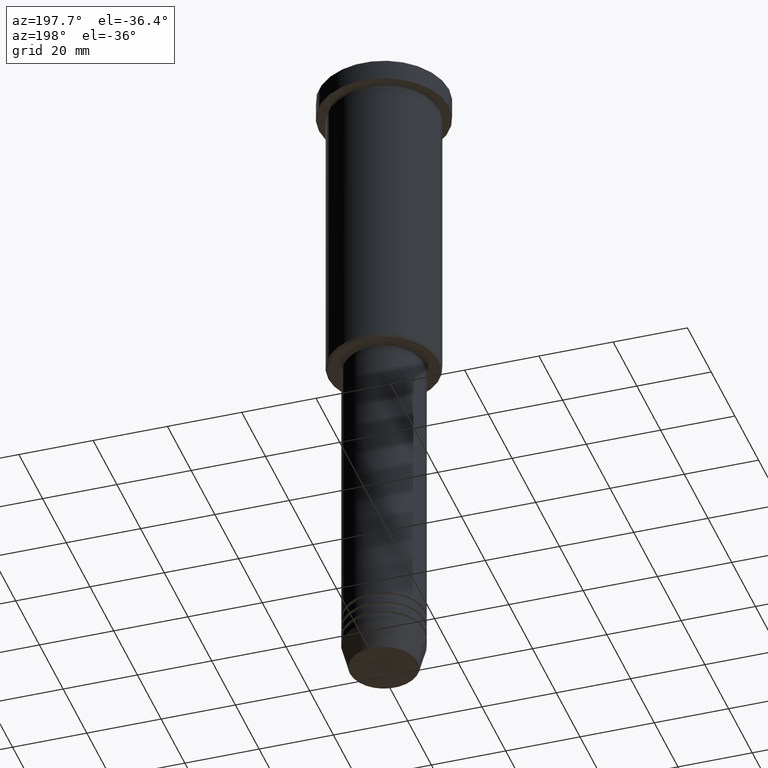
[diagram: clean part render]
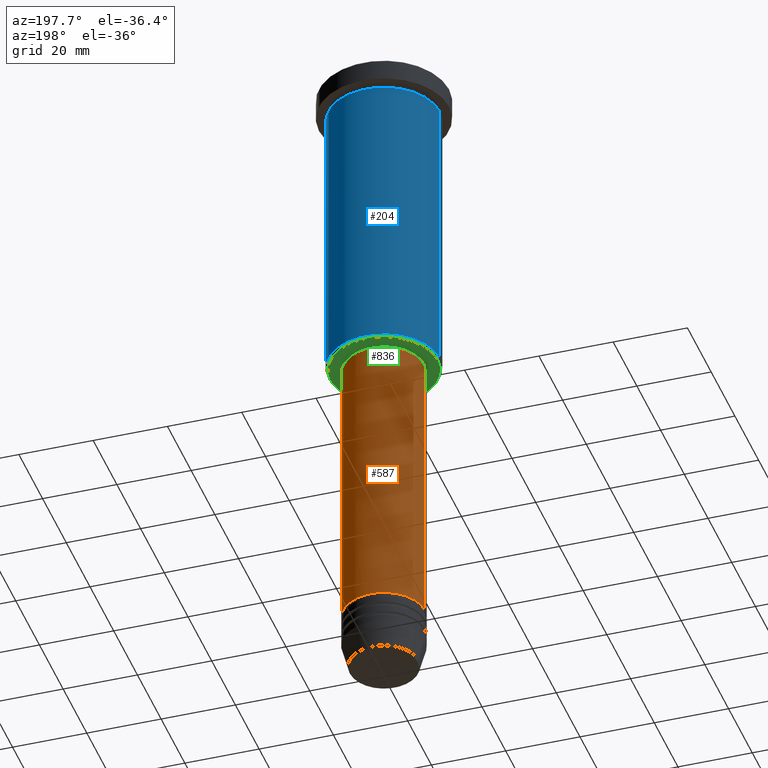
[diagram: same view with three faces highlighted in distinct colors, each labeled with its STEP entity id]
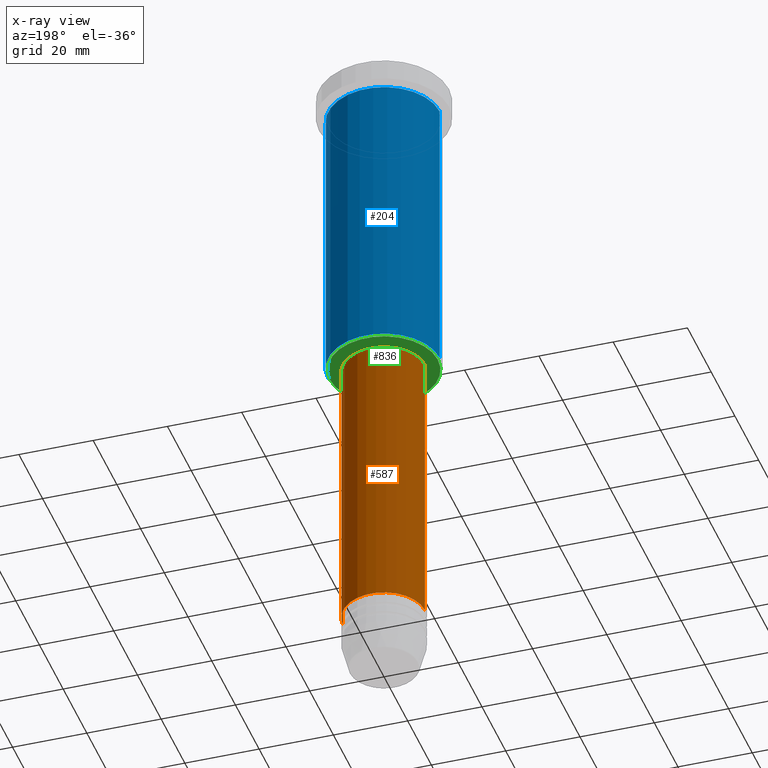
[diagram: x-ray of the same camera — body ghosted, the three highlighted faces saturated]
A machine part, auxiliary view with three faces highlighted in distinct colors.
The next image is the same camera in x-ray (body ghosted, the three faces saturated) — at least one of them is partly hidden behind the body in this view.
Their STEP definitions:

[orange] entity #587 — the highlighted cylindrical surface (partial cylindrical patch) has radius 11 mm, axis along (-0, -0, 1).
#58 = DIRECTION ( 'NONE',  ( 1.000000000000000000, 0.000000000000000000, 0.000000000000000000 ) ) ;
#66 = CARTESIAN_POINT ( 'NONE',  ( -11.00000000000000000, 1.347111479062088405E-15, -164.9999999999999716 ) ) ;
#88 = LINE ( 'NONE', #543, #180 ) ;
#114 = CARTESIAN_POINT ( 'NONE',  ( 11.00000000000000000, 0.000000000000000000, -164.9999999999999716 ) ) ;
#118 = VERTEX_POINT ( 'NONE', #114 ) ;
#162 = AXIS2_PLACEMENT_3D ( 'NONE', #1050, #322, #58 ) ;
#180 = VECTOR ( 'NONE', #825, 1000.000000000000000 ) ;
#207 = VERTEX_POINT ( 'NONE', #488 ) ;
#239 = ORIENTED_EDGE ( 'NONE', *, *, #533, .F. ) ;
#254 = DIRECTION ( 'NONE',  ( 1.000000000000000000, 0.000000000000000000, 0.000000000000000000 ) ) ;
#257 = ORIENTED_EDGE ( 'NONE', *, *, #942, .F. ) ;
#322 = DIRECTION ( 'NONE',  ( -0.000000000000000000, -0.000000000000000000, 1.000000000000000000 ) ) ;
#365 = ORIENTED_EDGE ( 'NONE', *, *, #741, .T. ) ;
#488 = CARTESIAN_POINT ( 'NONE',  ( 11.00000000000000000, 0.000000000000000000, -87.00000000000002842 ) ) ;
#493 = LINE ( 'NONE', #1136, #776 ) ;
#504 = EDGE_LOOP ( 'NONE', ( #365, #532, #257, #239 ) ) ;
#532 = ORIENTED_EDGE ( 'NONE', *, *, #1080, .T. ) ;
#533 = EDGE_CURVE ( 'NONE', #118, #207, #88, .T. ) ;
#543 = CARTESIAN_POINT ( 'NONE',  ( 11.00000000000000000, 0.000000000000000000, 0.000000000000000000 ) ) ;
#560 = FACE_OUTER_BOUND ( 'NONE', #504, .T. ) ;
#566 = CYLINDRICAL_SURFACE ( 'NONE', #575, 11.00000000000000000 ) ;
#575 = AXIS2_PLACEMENT_3D ( 'NONE', #937, #945, #757 ) ;
#587 = ADVANCED_FACE ( 'NONE', ( #560 ), #566, .T. ) ;
#665 = CARTESIAN_POINT ( 'NONE',  ( -11.00000000000000000, 1.347111479062088405E-15, -87.00000000000002842 ) ) ;
#679 = CIRCLE ( 'NONE', #162, 11.00000000000000000 ) ;
#724 = DIRECTION ( 'NONE',  ( -0.000000000000000000, -0.000000000000000000, 1.000000000000000000 ) ) ;
#737 = VERTEX_POINT ( 'NONE', #66 ) ;
#741 = EDGE_CURVE ( 'NONE', #118, #737, #679, .T. ) ;
#757 = DIRECTION ( 'NONE',  ( 1.000000000000000000, 0.000000000000000000, 0.000000000000000000 ) ) ;
#776 = VECTOR ( 'NONE', #860, 1000.000000000000000 ) ;
#825 = DIRECTION ( 'NONE',  ( -0.000000000000000000, -0.000000000000000000, 1.000000000000000000 ) ) ;
#860 = DIRECTION ( 'NONE',  ( -0.000000000000000000, -0.000000000000000000, 1.000000000000000000 ) ) ;
#933 = CARTESIAN_POINT ( 'NONE',  ( 0.000000000000000000, 0.000000000000000000, -87.00000000000002842 ) ) ;
#937 = CARTESIAN_POINT ( 'NONE',  ( 0.000000000000000000, 0.000000000000000000, 0.000000000000000000 ) ) ;
#942 = EDGE_CURVE ( 'NONE', #207, #1062, #1040, .T. ) ;
#945 = DIRECTION ( 'NONE',  ( -0.000000000000000000, -0.000000000000000000, 1.000000000000000000 ) ) ;
#961 = AXIS2_PLACEMENT_3D ( 'NONE', #933, #724, #254 ) ;
#1040 = CIRCLE ( 'NONE', #961, 11.00000000000000000 ) ;
#1050 = CARTESIAN_POINT ( 'NONE',  ( 0.000000000000000000, 0.000000000000000000, -164.9999999999999716 ) ) ;
#1062 = VERTEX_POINT ( 'NONE', #665 ) ;
#1080 = EDGE_CURVE ( 'NONE', #737, #1062, #493, .T. ) ;
#1136 = CARTESIAN_POINT ( 'NONE',  ( -11.00000000000000000, 1.347111479062088405E-15, 0.000000000000000000 ) ) ;

[blue] entity #204 — the highlighted cylindrical surface (partial cylindrical patch) has radius 15 mm, axis along (-0, -0, 1).
#32 = DIRECTION ( 'NONE',  ( -0.000000000000000000, -0.000000000000000000, 1.000000000000000000 ) ) ;
#42 = VERTEX_POINT ( 'NONE', #926 ) ;
#78 = VERTEX_POINT ( 'NONE', #361 ) ;
#87 = EDGE_LOOP ( 'NONE', ( #946, #1126, #716, #803 ) ) ;
#133 = DIRECTION ( 'NONE',  ( -0.000000000000000000, -0.000000000000000000, 1.000000000000000000 ) ) ;
#169 = DIRECTION ( 'NONE',  ( -0.000000000000000000, -0.000000000000000000, 1.000000000000000000 ) ) ;
#204 = ADVANCED_FACE ( 'NONE', ( #482 ), #680, .T. ) ;
#319 = DIRECTION ( 'NONE',  ( -0.000000000000000000, -0.000000000000000000, 1.000000000000000000 ) ) ;
#361 = CARTESIAN_POINT ( 'NONE',  ( 15.00000000000000000, 0.000000000000000000, -85.49999999999998579 ) ) ;
#397 = EDGE_CURVE ( 'NONE', #78, #1013, #1142, .T. ) ;
#405 = CARTESIAN_POINT ( 'NONE',  ( 15.00000000000000000, 0.000000000000000000, -6.999999999999995559 ) ) ;
#447 = DIRECTION ( 'NONE',  ( -1.000000000000000000, 0.000000000000000000, 0.000000000000000000 ) ) ;
#478 = EDGE_CURVE ( 'NONE', #78, #42, #773, .T. ) ;
#482 = FACE_OUTER_BOUND ( 'NONE', #87, .T. ) ;
#534 = AXIS2_PLACEMENT_3D ( 'NONE', #537, #169, #447 ) ;
#537 = CARTESIAN_POINT ( 'NONE',  ( 0.000000000000000000, 0.000000000000000000, -85.49999999999998579 ) ) ;
#582 = DIRECTION ( 'NONE',  ( 1.000000000000000000, 0.000000000000000000, 0.000000000000000000 ) ) ;
#598 = VECTOR ( 'NONE', #614, 1000.000000000000000 ) ;
#614 = DIRECTION ( 'NONE',  ( -0.000000000000000000, -0.000000000000000000, 1.000000000000000000 ) ) ;
#652 = LINE ( 'NONE', #704, #869 ) ;
#654 = CARTESIAN_POINT ( 'NONE',  ( 0.000000000000000000, 0.000000000000000000, 0.000000000000000000 ) ) ;
#680 = CYLINDRICAL_SURFACE ( 'NONE', #1001, 15.00000000000000000 ) ;
#699 = CARTESIAN_POINT ( 'NONE',  ( 15.00000000000000000, 0.000000000000000000, 0.000000000000000000 ) ) ;
#704 = CARTESIAN_POINT ( 'NONE',  ( -15.00000000000000000, 1.836970198721029589E-15, 0.000000000000000000 ) ) ;
#711 = EDGE_CURVE ( 'NONE', #42, #899, #652, .T. ) ;
#716 = ORIENTED_EDGE ( 'NONE', *, *, #748, .F. ) ;
#748 = EDGE_CURVE ( 'NONE', #1013, #899, #1131, .T. ) ;
#773 = CIRCLE ( 'NONE', #534, 15.00000000000000000 ) ;
#780 = CARTESIAN_POINT ( 'NONE',  ( 0.000000000000000000, 0.000000000000000000, -6.999999999999995559 ) ) ;
#793 = AXIS2_PLACEMENT_3D ( 'NONE', #780, #319, #582 ) ;
#803 = ORIENTED_EDGE ( 'NONE', *, *, #397, .F. ) ;
#869 = VECTOR ( 'NONE', #133, 1000.000000000000000 ) ;
#899 = VERTEX_POINT ( 'NONE', #1103 ) ;
#926 = CARTESIAN_POINT ( 'NONE',  ( -15.00000000000000000, 1.836970198721029589E-15, -85.49999999999998579 ) ) ;
#946 = ORIENTED_EDGE ( 'NONE', *, *, #478, .T. ) ;
#1001 = AXIS2_PLACEMENT_3D ( 'NONE', #654, #32, #1019 ) ;
#1013 = VERTEX_POINT ( 'NONE', #405 ) ;
#1019 = DIRECTION ( 'NONE',  ( 1.000000000000000000, 0.000000000000000000, 0.000000000000000000 ) ) ;
#1103 = CARTESIAN_POINT ( 'NONE',  ( -15.00000000000000000, 1.836970198721029589E-15, -6.999999999999995559 ) ) ;
#1126 = ORIENTED_EDGE ( 'NONE', *, *, #711, .T. ) ;
#1131 = CIRCLE ( 'NONE', #793, 15.00000000000000000 ) ;
#1142 = LINE ( 'NONE', #699, #598 ) ;

[green] entity #836 — the highlighted planar face has unit normal (0, 0, -1).
#2 = DIRECTION ( 'NONE',  ( 1.000000000000000000, 0.000000000000000000, 0.000000000000000000 ) ) ;
#16 = ORIENTED_EDGE ( 'NONE', *, *, #80, .T. ) ;
#18 = CARTESIAN_POINT ( 'NONE',  ( 14.49999999999996980, 0.000000000000000000, -86.00000000000000000 ) ) ;
#36 = EDGE_CURVE ( 'NONE', #184, #130, #1129, .T. ) ;
#45 = AXIS2_PLACEMENT_3D ( 'NONE', #649, #177, #2 ) ;
#52 = PLANE ( 'NONE',  #756 ) ;
#80 = EDGE_CURVE ( 'NONE', #109, #963, #232, .T. ) ;
#109 = VERTEX_POINT ( 'NONE', #278 ) ;
#120 = AXIS2_PLACEMENT_3D ( 'NONE', #191, #1073, #812 ) ;
#130 = VERTEX_POINT ( 'NONE', #302 ) ;
#147 = DIRECTION ( 'NONE',  ( -1.000000000000000000, 0.000000000000000000, 0.000000000000000000 ) ) ;
#150 = ORIENTED_EDGE ( 'NONE', *, *, #359, .T. ) ;
#177 = DIRECTION ( 'NONE',  ( -0.000000000000000000, -0.000000000000000000, 1.000000000000000000 ) ) ;
#184 = VERTEX_POINT ( 'NONE', #18 ) ;
#191 = CARTESIAN_POINT ( 'NONE',  ( 0.000000000000000000, 0.000000000000000000, -86.00000000000000000 ) ) ;
#232 = CIRCLE ( 'NONE', #45, 10.49999999999999822 ) ;
#253 = AXIS2_PLACEMENT_3D ( 'NONE', #1067, #1047, #147 ) ;
#278 = CARTESIAN_POINT ( 'NONE',  ( 10.49999999999999822, 0.000000000000000000, -86.00000000000000000 ) ) ;
#302 = CARTESIAN_POINT ( 'NONE',  ( -14.49999999999996980, 1.806354028742344224E-15, -86.00000000000000000 ) ) ;
#315 = DIRECTION ( 'NONE',  ( 0.000000000000000000, 0.000000000000000000, -1.000000000000000000 ) ) ;
#359 = EDGE_CURVE ( 'NONE', #130, #184, #908, .T. ) ;
#411 = EDGE_CURVE ( 'NONE', #963, #109, #678, .T. ) ;
#413 = DIRECTION ( 'NONE',  ( -1.000000000000000000, 0.000000000000000000, -0.000000000000000000 ) ) ;
#455 = CARTESIAN_POINT ( 'NONE',  ( 0.000000000000000000, 0.000000000000000000, -86.00000000000000000 ) ) ;
#494 = FACE_OUTER_BOUND ( 'NONE', #502, .T. ) ;
#502 = EDGE_LOOP ( 'NONE', ( #743, #150 ) ) ;
#512 = CARTESIAN_POINT ( 'NONE',  ( 0.000000000000000000, 15.00000000000000000, -86.00000000000000000 ) ) ;
#530 = DIRECTION ( 'NONE',  ( -0.000000000000000000, -0.000000000000000000, 1.000000000000000000 ) ) ;
#554 = AXIS2_PLACEMENT_3D ( 'NONE', #455, #530, #818 ) ;
#649 = CARTESIAN_POINT ( 'NONE',  ( 0.000000000000000000, 0.000000000000000000, -86.00000000000000000 ) ) ;
#678 = CIRCLE ( 'NONE', #554, 10.49999999999999822 ) ;
#743 = ORIENTED_EDGE ( 'NONE', *, *, #36, .T. ) ;
#756 = AXIS2_PLACEMENT_3D ( 'NONE', #512, #315, #413 ) ;
#764 = EDGE_LOOP ( 'NONE', ( #16, #1115 ) ) ;
#812 = DIRECTION ( 'NONE',  ( -1.000000000000000000, 0.000000000000000000, 0.000000000000000000 ) ) ;
#818 = DIRECTION ( 'NONE',  ( 1.000000000000000000, 0.000000000000000000, 0.000000000000000000 ) ) ;
#836 = ADVANCED_FACE ( 'NONE', ( #494, #1147 ), #52, .T. ) ;
#837 = CARTESIAN_POINT ( 'NONE',  ( -10.49999999999999822, 1.285879139104720633E-15, -86.00000000000000000 ) ) ;
#908 = CIRCLE ( 'NONE', #253, 14.49999999999996980 ) ;
#963 = VERTEX_POINT ( 'NONE', #837 ) ;
#1047 = DIRECTION ( 'NONE',  ( 0.000000000000000000, 0.000000000000000000, -1.000000000000000000 ) ) ;
#1067 = CARTESIAN_POINT ( 'NONE',  ( 0.000000000000000000, 0.000000000000000000, -86.00000000000000000 ) ) ;
#1073 = DIRECTION ( 'NONE',  ( 0.000000000000000000, 0.000000000000000000, -1.000000000000000000 ) ) ;
#1115 = ORIENTED_EDGE ( 'NONE', *, *, #411, .T. ) ;
#1129 = CIRCLE ( 'NONE', #120, 14.49999999999996980 ) ;
#1147 = FACE_BOUND ( 'NONE', #764, .T. ) ;